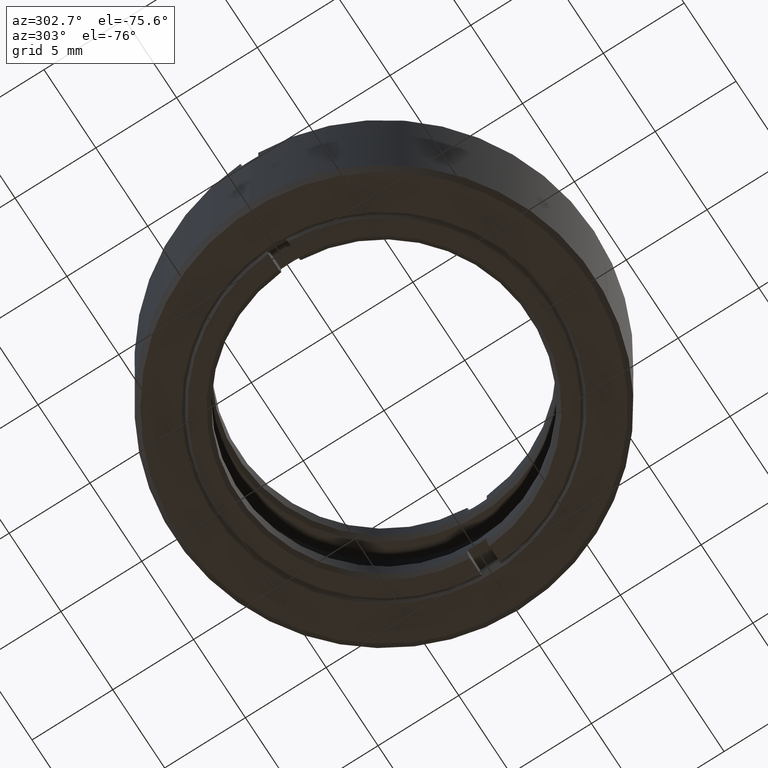
[diagram: clean part render]
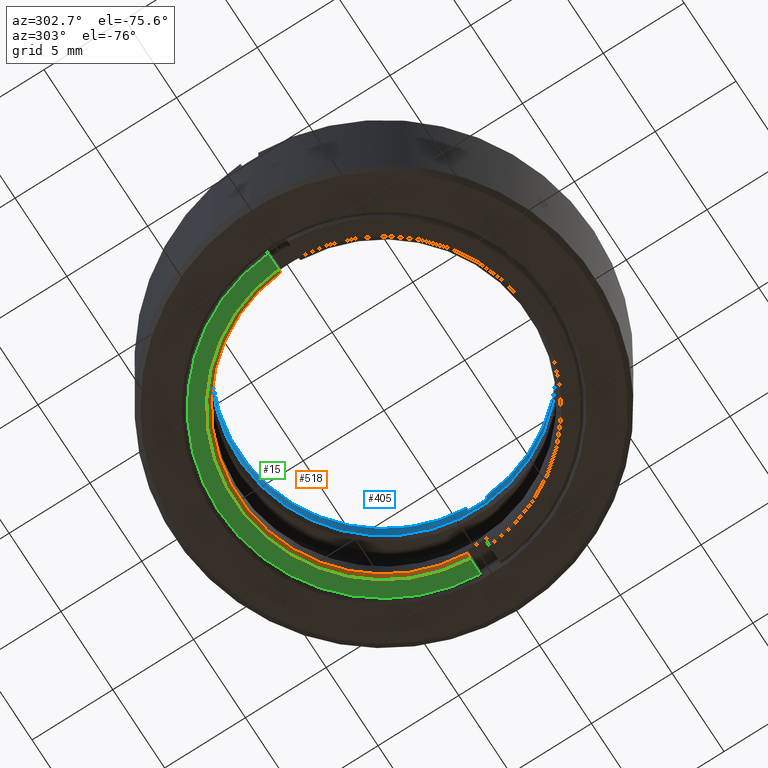
[diagram: same view with three faces highlighted in distinct colors, each labeled with its STEP entity id]
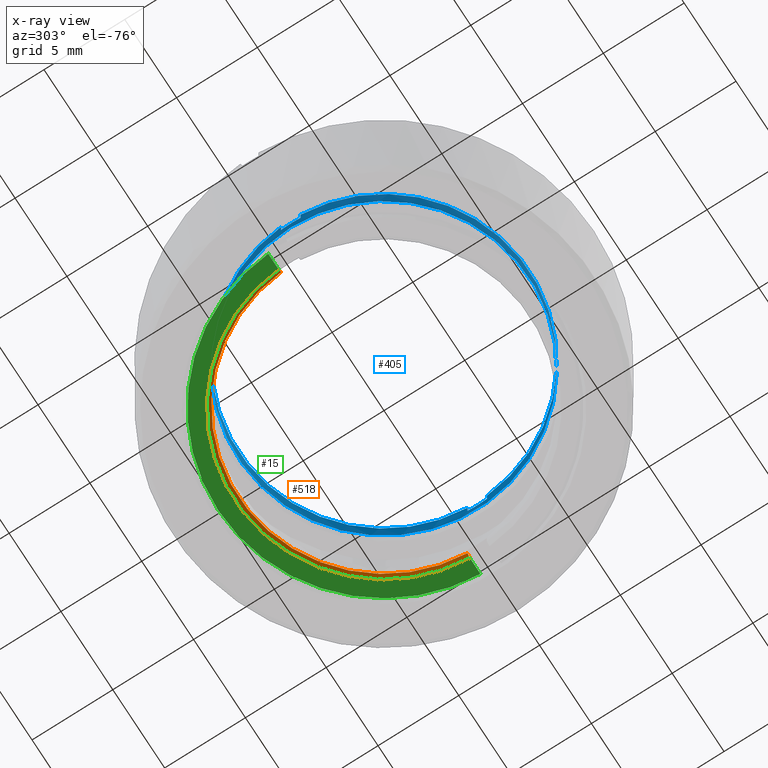
[diagram: x-ray of the same camera — body ghosted, the three highlighted faces saturated]
A machine part, auxiliary view with three faces highlighted in distinct colors.
The next image is the same camera in x-ray (body ghosted, the three faces saturated) — at least one of them is partly hidden behind the body in this view.
Their STEP definitions:

[orange] entity #518 — the highlighted conical surface has half-angle 45 deg.
#130 = VERTEX_POINT ( 'NONE', #1385 ) ;
#141 = VERTEX_POINT ( 'NONE', #1403 ) ;
#159 = CARTESIAN_POINT ( 'NONE',  ( 0.000000000000000000, 0.000000000000000000, -5.000000000000000000 ) ) ;
#167 = AXIS2_PLACEMENT_3D ( 'NONE', #1265, #1133, #776 ) ;
#171 = DIRECTION ( 'NONE',  ( -0.000000000000000000, -0.000000000000000000, 1.000000000000000000 ) ) ;
#189 = CARTESIAN_POINT ( 'NONE',  ( -9.230520028687381640, 0.6000000000000000888, -4.999999999999935163 ) ) ;
#192 = CIRCLE ( 'NONE', #1256, 9.000000000000003553 ) ;
#222 = B_SPLINE_CURVE_WITH_KNOTS ( 'NONE', 3,
 ( #1458, #230, #723, #1601 ),
 .UNSPECIFIED., .F., .F.,
 ( 4, 4 ),
 ( 5.256746047825941940E-15, 0.0003539370626414623531 ),
 .UNSPECIFIED. ) ;
#230 = CARTESIAN_POINT ( 'NONE',  ( 9.147008373952107974, 0.6000000000000000888, -4.916664216036392254 ) ) ;
#256 = ORIENTED_EDGE ( 'NONE', *, *, #415, .T. ) ;
#272 = DIRECTION ( 'NONE',  ( -1.000000000000000000, 0.000000000000000000, 0.000000000000000000 ) ) ;
#415 = EDGE_CURVE ( 'NONE', #1351, #141, #222, .T. ) ;
#451 = B_SPLINE_CURVE_WITH_KNOTS ( 'NONE', 3,
 ( #1434, #1300, #1060, #189 ),
 .UNSPECIFIED., .F., .F.,
 ( 4, 4 ),
 ( 1.637568854321511594E-16, 0.0003539370626311812975 ),
 .UNSPECIFIED. ) ;
#464 = CARTESIAN_POINT ( 'NONE',  ( 9.230520028691168832, 0.6000000000000000888, -5.000000000003712586 ) ) ;
#475 = ORIENTED_EDGE ( 'NONE', *, *, #1059, .T. ) ;
#518 = ADVANCED_FACE ( 'NONE', ( #627 ), #1598, .F. ) ;
#545 = VERTEX_POINT ( 'NONE', #1271 ) ;
#627 = FACE_OUTER_BOUND ( 'NONE', #1353, .T. ) ;
#723 = CARTESIAN_POINT ( 'NONE',  ( 9.063494341808681298, 0.6000000000000000888, -4.833330814403268505 ) ) ;
#776 = DIRECTION ( 'NONE',  ( -1.000000000000000000, 0.000000000000000000, 0.000000000000000000 ) ) ;
#781 = CARTESIAN_POINT ( 'NONE',  ( 0.000000000000000000, 0.000000000000000000, -4.749999999999996447 ) ) ;
#809 = CIRCLE ( 'NONE', #167, 9.250000000000007105 ) ;
#935 = ORIENTED_EDGE ( 'NONE', *, *, #1315, .T. ) ;
#940 = AXIS2_PLACEMENT_3D ( 'NONE', #159, #996, #272 ) ;
#996 = DIRECTION ( 'NONE',  ( 0.000000000000000000, 0.000000000000000000, -1.000000000000000000 ) ) ;
#1059 = EDGE_CURVE ( 'NONE', #141, #545, #192, .T. ) ;
#1060 = CARTESIAN_POINT ( 'NONE',  ( -9.147008373947061344, 0.6000000000000000888, -4.916664216031355394 ) ) ;
#1064 = DIRECTION ( 'NONE',  ( -1.000000000000000000, 0.000000000000000000, 0.000000000000000000 ) ) ;
#1088 = ORIENTED_EDGE ( 'NONE', *, *, #1166, .F. ) ;
#1133 = DIRECTION ( 'NONE',  ( -0.000000000000000000, -0.000000000000000000, 1.000000000000000000 ) ) ;
#1166 = EDGE_CURVE ( 'NONE', #1351, #130, #809, .T. ) ;
#1256 = AXIS2_PLACEMENT_3D ( 'NONE', #781, #171, #1064 ) ;
#1265 = CARTESIAN_POINT ( 'NONE',  ( 0.000000000000000000, 0.000000000000000000, -5.000000000000000000 ) ) ;
#1271 = CARTESIAN_POINT ( 'NONE',  ( -8.979977728258734970, 0.6000000000000000888, -4.750000000000344613 ) ) ;
#1300 = CARTESIAN_POINT ( 'NONE',  ( -9.063494341806158872, 0.6000000000000000888, -4.833330814400747855 ) ) ;
#1315 = EDGE_CURVE ( 'NONE', #545, #130, #451, .T. ) ;
#1351 = VERTEX_POINT ( 'NONE', #464 ) ;
#1353 = EDGE_LOOP ( 'NONE', ( #1088, #256, #475, #935 ) ) ;
#1385 = CARTESIAN_POINT ( 'NONE',  ( -9.230520028687381640, 0.6000000000000000888, -4.999999999999935163 ) ) ;
#1403 = CARTESIAN_POINT ( 'NONE',  ( 8.979977728258388581, 0.6000000000000000888, -4.750000000000921041 ) ) ;
#1434 = CARTESIAN_POINT ( 'NONE',  ( -8.979977728258734970, 0.6000000000000000888, -4.750000000000344613 ) ) ;
#1458 = CARTESIAN_POINT ( 'NONE',  ( 9.230520028691168832, 0.6000000000000000888, -5.000000000003712586 ) ) ;
#1598 = CONICAL_SURFACE ( 'NONE', #940, 9.250000000000007105, 0.7853981633974498333 ) ;
#1601 = CARTESIAN_POINT ( 'NONE',  ( 8.979977728258388581, 0.6000000000000000888, -4.750000000000921041 ) ) ;

[blue] entity #405 — the highlighted cylindrical surface (bore or boss wall) has radius 9 mm, axis along (0, 0, 1).
#1 = VERTEX_POINT ( 'NONE', #1345 ) ;
#7 = CIRCLE ( 'NONE', #319, 9.000000000000003553 ) ;
#48 = DIRECTION ( 'NONE',  ( -0.000000000000000000, -0.000000000000000000, -1.000000000000000000 ) ) ;
#49 = ORIENTED_EDGE ( 'NONE', *, *, #78, .T. ) ;
#53 = CARTESIAN_POINT ( 'NONE',  ( 8.979977728258734970, 0.6000000000000000888, 4.750000000000344613 ) ) ;
#78 = EDGE_CURVE ( 'NONE', #1, #816, #1472, .T. ) ;
#94 = VECTOR ( 'NONE', #362, 1000.000000000000000 ) ;
#131 = LINE ( 'NONE', #377, #94 ) ;
#143 = EDGE_CURVE ( 'NONE', #335, #816, #7, .T. ) ;
#148 = VERTEX_POINT ( 'NONE', #1374 ) ;
#160 = DIRECTION ( 'NONE',  ( 1.000000000000000000, 0.000000000000000000, 0.000000000000000000 ) ) ;
#195 = ORIENTED_EDGE ( 'NONE', *, *, #423, .T. ) ;
#209 = EDGE_CURVE ( 'NONE', #519, #1250, #1091, .T. ) ;
#288 = DIRECTION ( 'NONE',  ( 1.000000000000000000, 0.000000000000000000, 0.000000000000000000 ) ) ;
#319 = AXIS2_PLACEMENT_3D ( 'NONE', #1518, #389, #288 ) ;
#335 = VERTEX_POINT ( 'NONE', #675 ) ;
#349 = DIRECTION ( 'NONE',  ( -0.000000000000000000, 0.000000000000000000, 1.000000000000000000 ) ) ;
#358 = FACE_OUTER_BOUND ( 'NONE', #1316, .T. ) ;
#362 = DIRECTION ( 'NONE',  ( 0.000000000000000000, -0.000000000000000000, -1.000000000000000000 ) ) ;
#364 = FACE_OUTER_BOUND ( 'NONE', #841, .T. ) ;
#370 = DIRECTION ( 'NONE',  ( -1.000000000000000000, 0.000000000000000000, -4.818676322157796389E-17 ) ) ;
#377 = CARTESIAN_POINT ( 'NONE',  ( 8.979977728259314063, -0.5999999999999998668, 4.100000000000000533 ) ) ;
#389 = DIRECTION ( 'NONE',  ( -0.000000000000000000, -0.000000000000000000, -1.000000000000000000 ) ) ;
#405 = ADVANCED_FACE ( 'NONE', ( #358, #364 ), #738, .F. ) ;
#421 = CARTESIAN_POINT ( 'NONE',  ( 0.000000000000000000, 0.000000000000000000, 4.099999999999999645 ) ) ;
#423 = EDGE_CURVE ( 'NONE', #148, #1250, #1217, .T. ) ;
#424 = ORIENTED_EDGE ( 'NONE', *, *, #438, .T. ) ;
#438 = EDGE_CURVE ( 'NONE', #791, #791, #1537, .T. ) ;
#519 = VERTEX_POINT ( 'NONE', #1115 ) ;
#523 = DIRECTION ( 'NONE',  ( 1.000000000000000000, 1.065814103640150279E-14, 0.000000000000000000 ) ) ;
#551 = EDGE_CURVE ( 'NONE', #1, #865, #1305, .T. ) ;
#555 = ORIENTED_EDGE ( 'NONE', *, *, #209, .F. ) ;
#557 = DIRECTION ( 'NONE',  ( -0.000000000000000000, -0.000000000000000000, -1.000000000000000000 ) ) ;
#572 = ORIENTED_EDGE ( 'NONE', *, *, #850, .T. ) ;
#588 = ORIENTED_EDGE ( 'NONE', *, *, #813, .T. ) ;
#604 = VERTEX_POINT ( 'NONE', #753 ) ;
#624 = CARTESIAN_POINT ( 'NONE',  ( -8.979977728259314063, 0.6000000000000000888, 4.100000000000000533 ) ) ;
#631 = VECTOR ( 'NONE', #633, 1000.000000000000000 ) ;
#633 = DIRECTION ( 'NONE',  ( -0.000000000000000000, 0.000000000000000000, -1.000000000000000000 ) ) ;
#646 = CARTESIAN_POINT ( 'NONE',  ( 0.000000000000000000, 0.000000000000000000, 4.749999999999996447 ) ) ;
#675 = CARTESIAN_POINT ( 'NONE',  ( 8.979977728258388581, -0.5999999999999998668, 4.750000000000920153 ) ) ;
#680 = AXIS2_PLACEMENT_3D ( 'NONE', #646, #48, #160 ) ;
#718 = CARTESIAN_POINT ( 'NONE',  ( 8.979977728259314063, 0.6000000000000000888, 4.100000000000000533 ) ) ;
#729 = VECTOR ( 'NONE', #349, 1000.000000000000000 ) ;
#738 = CYLINDRICAL_SURFACE ( 'NONE', #1463, 9.000000000000003553 ) ;
#749 = CARTESIAN_POINT ( 'NONE',  ( -8.979977728258388581, 0.6000000000000000888, 4.099999999999999645 ) ) ;
#753 = CARTESIAN_POINT ( 'NONE',  ( 8.979977728258388581, -0.5999999999999998668, 4.099999999999999645 ) ) ;
#791 = VERTEX_POINT ( 'NONE', #1291 ) ;
#813 = EDGE_CURVE ( 'NONE', #335, #604, #131, .T. ) ;
#816 = VERTEX_POINT ( 'NONE', #986 ) ;
#841 = EDGE_LOOP ( 'NONE', ( #424 ) ) ;
#850 = EDGE_CURVE ( 'NONE', #519, #865, #1240, .T. ) ;
#859 = CARTESIAN_POINT ( 'NONE',  ( 0.000000000000000000, 0.000000000000000000, 3.250000000000002220 ) ) ;
#865 = VERTEX_POINT ( 'NONE', #749 ) ;
#885 = AXIS2_PLACEMENT_3D ( 'NONE', #1498, #557, #523 ) ;
#908 = DIRECTION ( 'NONE',  ( -0.000000000000000000, -0.000000000000000000, -1.000000000000000000 ) ) ;
#986 = CARTESIAN_POINT ( 'NONE',  ( -8.979977728258734970, -0.5999999999999998668, 4.750000000000343725 ) ) ;
#1079 = CARTESIAN_POINT ( 'NONE',  ( -8.979977728259314063, -0.5999999999999998668, 4.100000000000000533 ) ) ;
#1091 = CIRCLE ( 'NONE', #680, 9.000000000000003553 ) ;
#1100 = CARTESIAN_POINT ( 'NONE',  ( 0.000000000000000000, 0.000000000000000000, 3.000000000000000000 ) ) ;
#1115 = CARTESIAN_POINT ( 'NONE',  ( -8.979977728258388581, 0.6000000000000000888, 4.750000000000921041 ) ) ;
#1211 = DIRECTION ( 'NONE',  ( -0.000000000000000000, -0.000000000000000000, -1.000000000000000000 ) ) ;
#1217 = LINE ( 'NONE', #718, #1251 ) ;
#1228 = CIRCLE ( 'NONE', #1440, 9.000000000000003553 ) ;
#1240 = LINE ( 'NONE', #624, #631 ) ;
#1242 = EDGE_CURVE ( 'NONE', #148, #604, #1228, .T. ) ;
#1250 = VERTEX_POINT ( 'NONE', #53 ) ;
#1251 = VECTOR ( 'NONE', #1327, 1000.000000000000000 ) ;
#1291 = CARTESIAN_POINT ( 'NONE',  ( -9.000000000000001776, 0.000000000000000000, 3.250000000000001776 ) ) ;
#1305 = CIRCLE ( 'NONE', #885, 9.000000000000003553 ) ;
#1316 = EDGE_LOOP ( 'NONE', ( #1352, #195, #555, #572, #1347, #49, #1568, #588 ) ) ;
#1327 = DIRECTION ( 'NONE',  ( 0.000000000000000000, -0.000000000000000000, 1.000000000000000000 ) ) ;
#1345 = CARTESIAN_POINT ( 'NONE',  ( -8.979977728258388581, -0.5999999999999998668, 4.099999999999999645 ) ) ;
#1347 = ORIENTED_EDGE ( 'NONE', *, *, #551, .F. ) ;
#1352 = ORIENTED_EDGE ( 'NONE', *, *, #1242, .F. ) ;
#1374 = CARTESIAN_POINT ( 'NONE',  ( 8.979977728258388581, 0.6000000000000000888, 4.099999999999999645 ) ) ;
#1380 = AXIS2_PLACEMENT_3D ( 'NONE', #859, #1211, #370 ) ;
#1410 = DIRECTION ( 'NONE',  ( 1.000000000000000000, 0.000000000000000000, 0.000000000000000000 ) ) ;
#1440 = AXIS2_PLACEMENT_3D ( 'NONE', #421, #908, #1410 ) ;
#1463 = AXIS2_PLACEMENT_3D ( 'NONE', #1100, #1484, #1608 ) ;
#1472 = LINE ( 'NONE', #1079, #729 ) ;
#1484 = DIRECTION ( 'NONE',  ( 0.000000000000000000, 0.000000000000000000, 1.000000000000000000 ) ) ;
#1498 = CARTESIAN_POINT ( 'NONE',  ( 0.000000000000000000, 0.000000000000000000, 4.099999999999999645 ) ) ;
#1518 = CARTESIAN_POINT ( 'NONE',  ( 0.000000000000000000, 0.000000000000000000, 4.749999999999996447 ) ) ;
#1537 = CIRCLE ( 'NONE', #1380, 9.000000000000001776 ) ;
#1568 = ORIENTED_EDGE ( 'NONE', *, *, #143, .F. ) ;
#1608 = DIRECTION ( 'NONE',  ( 1.000000000000000000, 0.000000000000000000, 0.000000000000000000 ) ) ;

[green] entity #15 — the highlighted planar face has unit normal (0, 0, -1).
#2 = LINE ( 'NONE', #110, #756 ) ;
#15 = ADVANCED_FACE ( 'NONE', ( #725 ), #1212, .T. ) ;
#29 = CARTESIAN_POINT ( 'NONE',  ( 0.000000000000000000, 0.6000000000000000888, -5.000000000000000000 ) ) ;
#30 = ORIENTED_EDGE ( 'NONE', *, *, #1467, .T. ) ;
#51 = DIRECTION ( 'NONE',  ( 0.000000000000000000, 0.000000000000000000, 1.000000000000000000 ) ) ;
#110 = CARTESIAN_POINT ( 'NONE',  ( 0.000000000000000000, 0.6000000000000000888, -5.000000000000000000 ) ) ;
#130 = VERTEX_POINT ( 'NONE', #1385 ) ;
#132 = LINE ( 'NONE', #29, #1418 ) ;
#164 = DIRECTION ( 'NONE',  ( -1.000000000000000000, 0.000000000000000000, 0.000000000000000000 ) ) ;
#167 = AXIS2_PLACEMENT_3D ( 'NONE', #1265, #1133, #776 ) ;
#300 = VERTEX_POINT ( 'NONE', #1288 ) ;
#464 = CARTESIAN_POINT ( 'NONE',  ( 9.230520028691168832, 0.6000000000000000888, -5.000000000003712586 ) ) ;
#490 = DIRECTION ( 'NONE',  ( 0.000000000000000000, 0.000000000000000000, -1.000000000000000000 ) ) ;
#711 = CIRCLE ( 'NONE', #787, 10.25000000000001421 ) ;
#725 = FACE_OUTER_BOUND ( 'NONE', #1074, .T. ) ;
#756 = VECTOR ( 'NONE', #843, 1000.000000000000000 ) ;
#776 = DIRECTION ( 'NONE',  ( -1.000000000000000000, 0.000000000000000000, 0.000000000000000000 ) ) ;
#787 = AXIS2_PLACEMENT_3D ( 'NONE', #914, #51, #1544 ) ;
#793 = EDGE_CURVE ( 'NONE', #130, #1362, #2, .T. ) ;
#809 = CIRCLE ( 'NONE', #167, 9.250000000000007105 ) ;
#843 = DIRECTION ( 'NONE',  ( -1.000000000000000000, 0.000000000000000000, 0.000000000000000000 ) ) ;
#914 = CARTESIAN_POINT ( 'NONE',  ( 0.000000000000000000, 0.000000000000000000, -4.999999999999999112 ) ) ;
#978 = ORIENTED_EDGE ( 'NONE', *, *, #1607, .F. ) ;
#983 = DIRECTION ( 'NONE',  ( -1.000000000000000000, 0.000000000000000000, 0.000000000000000000 ) ) ;
#990 = CARTESIAN_POINT ( 'NONE',  ( 0.000000000000000000, 0.000000000000000000, -5.000000000000000000 ) ) ;
#1074 = EDGE_LOOP ( 'NONE', ( #30, #1481, #1363, #978 ) ) ;
#1133 = DIRECTION ( 'NONE',  ( -0.000000000000000000, -0.000000000000000000, 1.000000000000000000 ) ) ;
#1166 = EDGE_CURVE ( 'NONE', #1351, #130, #809, .T. ) ;
#1209 = CARTESIAN_POINT ( 'NONE',  ( -10.23242395525128146, 0.6000000000000000888, -4.999999999999999112 ) ) ;
#1212 = PLANE ( 'NONE',  #1378 ) ;
#1265 = CARTESIAN_POINT ( 'NONE',  ( 0.000000000000000000, 0.000000000000000000, -5.000000000000000000 ) ) ;
#1288 = CARTESIAN_POINT ( 'NONE',  ( 10.23242395525129567, 0.6000000000000000888, -4.999999999999984013 ) ) ;
#1351 = VERTEX_POINT ( 'NONE', #464 ) ;
#1362 = VERTEX_POINT ( 'NONE', #1209 ) ;
#1363 = ORIENTED_EDGE ( 'NONE', *, *, #793, .T. ) ;
#1378 = AXIS2_PLACEMENT_3D ( 'NONE', #990, #490, #983 ) ;
#1385 = CARTESIAN_POINT ( 'NONE',  ( -9.230520028687381640, 0.6000000000000000888, -4.999999999999935163 ) ) ;
#1418 = VECTOR ( 'NONE', #164, 1000.000000000000000 ) ;
#1467 = EDGE_CURVE ( 'NONE', #300, #1351, #132, .T. ) ;
#1481 = ORIENTED_EDGE ( 'NONE', *, *, #1166, .T. ) ;
#1544 = DIRECTION ( 'NONE',  ( 1.000000000000000000, 0.000000000000000000, 0.000000000000000000 ) ) ;
#1607 = EDGE_CURVE ( 'NONE', #300, #1362, #711, .T. ) ;